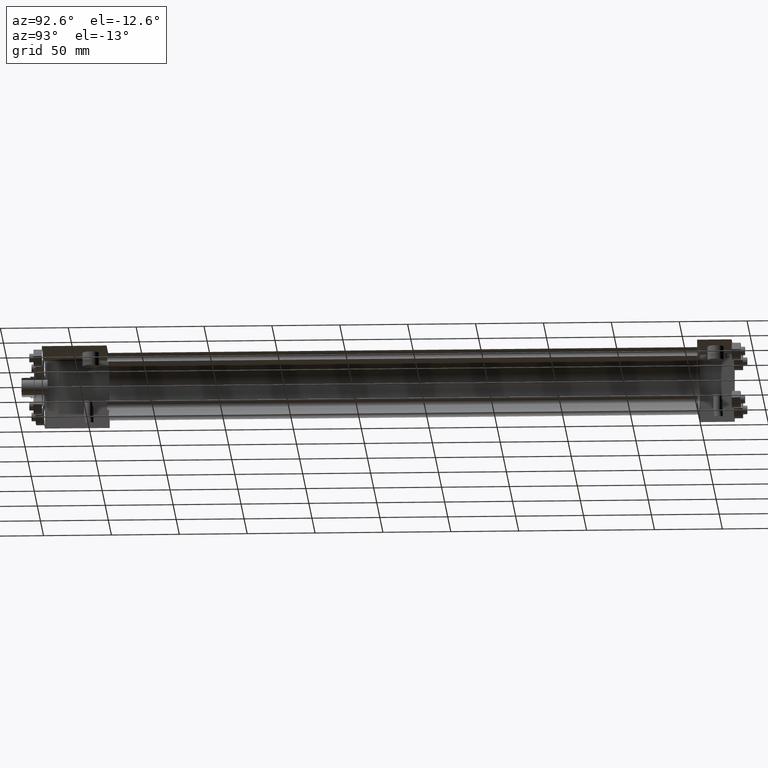
[diagram: clean part render]
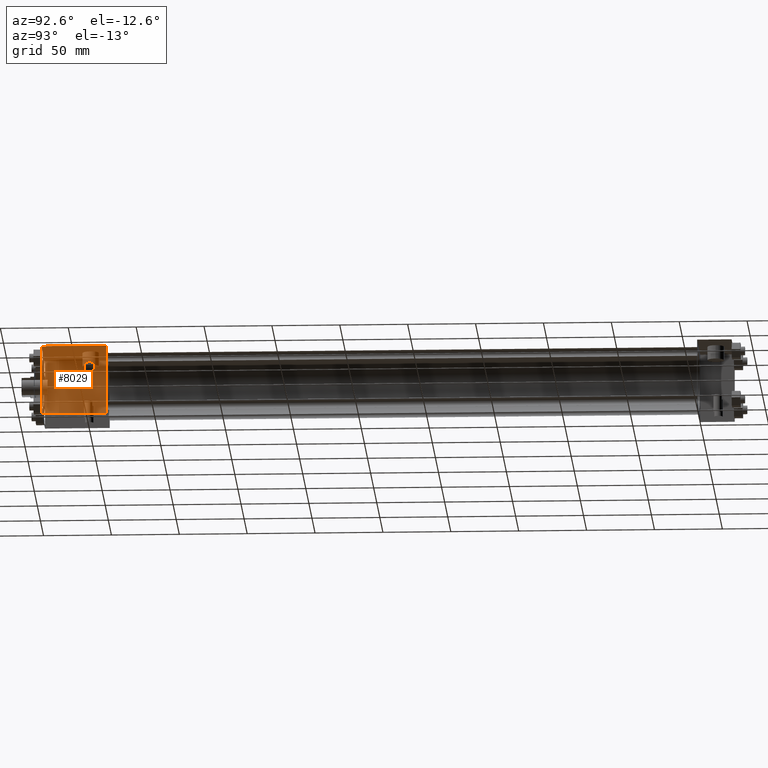
[diagram: same view with one face highlighted and labeled with its STEP entity id]
A machine part, auxiliary view. The second image highlights one B-rep face of the part: STEP entity #8029.
In plain terms, the highlighted planar face has unit normal (1, 0, 0).
Its self-contained STEP definition (entity closure, byte-faithful):
#1776=EDGE_CURVE('',#1782,#1782,#1777,.T.);
#1777=CIRCLE('',#1778,3.968750000E+000);
#1778=AXIS2_PLACEMENT_3D('',#1779,#1780,#1781);
#1779=CARTESIAN_POINT('',(2.540000000E+001,5.080000000E+001,9.525000000E+000));
#1780=DIRECTION('',(-1.0E+000,0.0E+000,0.0E+000));
#1781=DIRECTION('',(0.0E+000,0.0E+000,-1.0E+000));
#1782=VERTEX_POINT('',#1783);
#1783=CARTESIAN_POINT('',(2.540000000E+001,5.080000000E+001,5.556250000E+000));
#1958=VERTEX_POINT('',#1959);
#1959=CARTESIAN_POINT('',(2.540000000E+001,1.587500000E+001,2.540000000E+001));
#1960=EDGE_CURVE('',#1965,#1958,#1961,.T.);
#1961=LINE('',#1962,#1963);
#1962=CARTESIAN_POINT('',(2.540000000E+001,6.350000000E+001,2.540000000E+001));
#1963=VECTOR('',#1964,1.0E+000);
#1964=DIRECTION('',(0.0E+000,-1.0E+000,0.0E+000));
#1965=VERTEX_POINT('',#1966);
#1966=CARTESIAN_POINT('',(2.540000000E+001,6.350000000E+001,2.540000000E+001));
#1977=FACE_OUTER_BOUND('',#1979,.T.);
#1978=FACE_BOUND('',#1980,.T.);
#1979=EDGE_LOOP('',(#1981));
#1980=EDGE_LOOP('',(#1982,#1983,#1984,#1985));
#1981=ORIENTED_EDGE('',*,*,#1776,.T.);
#1982=ORIENTED_EDGE('',*,*,#1986,.F.);
#1983=ORIENTED_EDGE('',*,*,#1993,.F.);
#1984=ORIENTED_EDGE('',*,*,#2000,.T.);
#1985=ORIENTED_EDGE('',*,*,#1960,.T.);
#1986=EDGE_CURVE('',#1991,#1958,#1987,.T.);
#1987=LINE('',#1988,#1989);
#1988=CARTESIAN_POINT('',(2.540000000E+001,1.587500000E+001,-2.540000000E+001));
#1989=VECTOR('',#1990,1.0E+000);
#1990=DIRECTION('',(0.0E+000,0.0E+000,1.0E+000));
#1991=VERTEX_POINT('',#1992);
#1992=CARTESIAN_POINT('',(2.540000000E+001,1.587500000E+001,-2.540000000E+001));
#1993=EDGE_CURVE('',#1998,#1991,#1994,.T.);
#1994=LINE('',#1995,#1996);
#1995=CARTESIAN_POINT('',(2.540000000E+001,6.350000000E+001,-2.540000000E+001));
#1996=VECTOR('',#1997,1.0E+000);
#1997=DIRECTION('',(0.0E+000,-1.0E+000,0.0E+000));
#1998=VERTEX_POINT('',#1999);
#1999=CARTESIAN_POINT('',(2.540000000E+001,6.350000000E+001,-2.540000000E+001));
#2000=EDGE_CURVE('',#1998,#1965,#2001,.T.);
#2001=LINE('',#2002,#2003);
#2002=CARTESIAN_POINT('',(2.540000000E+001,6.350000000E+001,-2.540000000E+001));
#2003=VECTOR('',#2004,1.0E+000);
#2004=DIRECTION('',(0.0E+000,0.0E+000,1.0E+000));
#2005=PLANE('',#2006);
#2006=AXIS2_PLACEMENT_3D('',#2007,#2008,#2009);
#2007=CARTESIAN_POINT('',(2.540000000E+001,6.350000000E+001,-2.540000000E+001));
#2008=DIRECTION('',(1.0E+000,0.0E+000,0.0E+000));
#2009=DIRECTION('',(0.0E+000,0.0E+000,-1.0E+000));
#8029=ADVANCED_FACE('',(#1977,#1978),#2005,.T.);